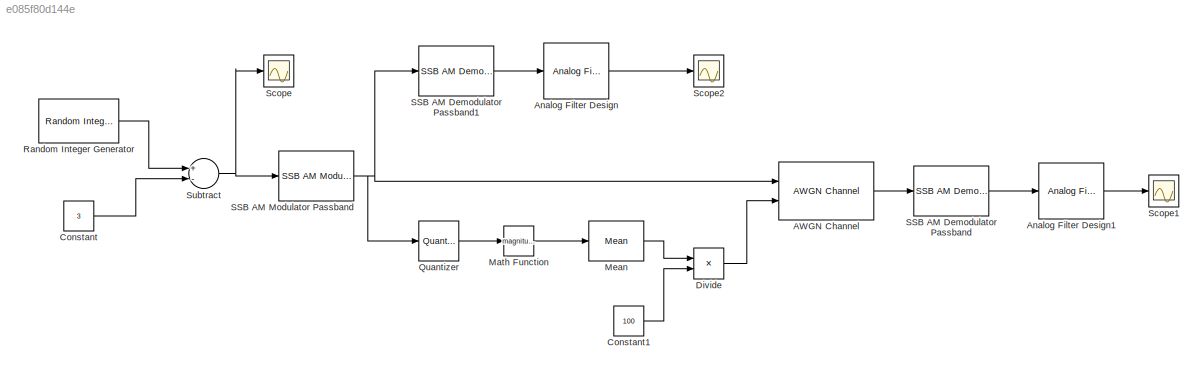
MODEL slx_e085f80d144e
KIND model
BLOCK [Reference] AWGN Channel  REF=commchan3/AWGN
Channel
  EbNodB = 10
  EsNodB = 10
  InputProcessing = Columns as channels (frame based)
  Ports = [2, 1]
  Ps = 1
  SNRdB = 10
  SourceBlock = commchan3/AWGN\nChannel
  SourceType = AWGN Channel
  Tsym = 1
  UserDataPersistent = on
  bitsPerSym = 1
  noiseMode = Variance from port
  seed = 67
  variance = 1
BLOCK [Reference] Analog Filter Design  REF=dsparch4/Analog
Filter Design
  N = 8
  Ports = [1, 1]
  Rp = 2
  Rs = 40
  SourceBlock = dsparch4/Analog\nFilter Design
  SourceType = Analog Filter Design
  Whi = 80
  Wlo = 30
  filttype = Lowpass
  method = Butterworth
BLOCK [Reference] Analog Filter Design1  REF=dsparch4/Analog
Filter Design
  N = 8
  Ports = [1, 1]
  Rp = 2
  Rs = 40
  SourceBlock = dsparch4/Analog\nFilter Design
  SourceType = Analog Filter Design
  Whi = 80
  Wlo = 30
  filttype = Lowpass
  method = Butterworth
BLOCK [Constant] Constant
  Value = 3
BLOCK [Constant] Constant1
  Value = 100
BLOCK [Product] Divide
  InputSameDT = off
  Inputs = */
  OutDataTypeStr = Inherit: Inherit via internal rule
  Ports = [2, 1]
  RndMeth = Floor
  SaturateOnIntegerOverflow = off
BLOCK [Math] Math Function
  Operator = magnitude^2
  Ports = [1, 1]
BLOCK [Reference] Mean  REF=dspstat3/Mean
  InputProcessing = Columns as channels (frame based)
  LockScale = off
  Ports = [1, 1]
  SourceBlock = dspstat3/Mean
  SourceType = Mean
  UserDataPersistent = on
  accumDataTypeStr = Inherit: Same as input
  accumFracLength = 30
  accumLastDataTypeStr = Inherit: Same as input
  accumMode = Same as input
  accumWordLength = 32
  additionalParams = off
  allowOverrides = on
  dimension = 1
  directionMode = Each column
  outputDataTypeStr = Inherit: Same as accumulator
  outputFracLength = 30
  outputLastDataTypeStr = Inherit: Same as accumulator
  outputMax = []
  outputMin = []
  outputMode = Same as accumulator
  outputWordLength = 32
  overflowMode = off
  reset_popup = None
  roiEnable = off
  roiFlag = off
  roiOutput = Individual statistics for each ROI
  roiPortion = Entire ROI
  roiType = Rectangles
  roundingMode = Floor
  run = on
  treatSBRowAsCol = on
BLOCK [Quantizer] Quantizer
  LinearizeAsGain = off
  QuantizationInterval = 0.001
  SampleTime = 0.001
BLOCK [Reference] Random Integer Generator  REF=commrandsrc2/Random Integer
Generator
  Ports = [0, 1]
  SourceBlock = commrandsrc2/Random Integer\nGenerator
  SourceType = Random Integer Generator
  Ts = 1/2
  frameBased = off
  mul = 7
  orient = off
  outDataType = double
  sampPerFrame = 1
  seed = 37
BLOCK [Reference] SSB AM Demodulator Passband  REF=commanapbnd3/SSB AM
Demodulator
Passband
  Fc = 300
  Ph = 0
  Ports = [1, 1]
  Rp = 0.1
  Rs = 50
  SourceBlock = commanapbnd3/SSB AM\nDemodulator\nPassband
  SourceType = SSB AM Demodulator Passband
  cf = 300
  method = Butterworth
  n = 4
BLOCK [Reference] SSB AM Demodulator Passband1  REF=commanapbnd3/SSB AM
Demodulator
Passband
  Fc = 300
  Ph = 0
  Ports = [1, 1]
  Rp = 0.1
  Rs = 50
  SourceBlock = commanapbnd3/SSB AM\nDemodulator\nPassband
  SourceType = SSB AM Demodulator Passband
  cf = 300
  method = Butterworth
  n = 4
BLOCK [Reference] SSB AM Modulator Passband  REF=commanapbnd3/SSB AM
Modulator
Passband
  Fc = 300
  Ho = 100
  Ph = 0
  Ports = [1, 1]
  Sd = Upper
  SourceBlock = commanapbnd3/SSB AM\nModulator\nPassband
  SourceType = SSB AM Modulator Passband
BLOCK [Scope] Scope
  DataFormat = StructureWithTime
  Floating = off
  NumInputPorts = 1
  Ports = [1]
  SampleTime = 0
  ShowLegends = off
BLOCK [Scope] Scope1
  DataFormat = StructureWithTime
  Floating = off
  NumInputPorts = 1
  Ports = [1]
  SampleTime = 0
  SaveName = ScopeData1
  ShowLegends = off
BLOCK [Scope] Scope2
  DataFormat = StructureWithTime
  Floating = off
  NumInputPorts = 1
  Ports = [1]
  SampleTime = 0
  SaveName = ScopeData2
  ShowLegends = off
BLOCK [Sum] Subtract
  InputSameDT = off
  Inputs = +-
  OutDataTypeStr = Inherit: Inherit via internal rule
  Ports = [2, 1]
  SaturateOnIntegerOverflow = off
LINE AWGN Channel:1 -> SSB AM Demodulator Passband:1
LINE Analog Filter Design1:1 -> Scope1:1
LINE Analog Filter Design:1 -> Scope2:1
LINE Constant1:1 -> Divide:2
LINE Constant:1 -> Subtract:2
LINE Divide:1 -> AWGN Channel:2
LINE Math Function:1 -> Mean:1
LINE Mean:1 -> Divide:1
LINE Quantizer:1 -> Math Function:1
LINE Random Integer Generator:1 -> Subtract:1
LINE SSB AM Demodulator Passband1:1 -> Analog Filter Design:1
LINE SSB AM Demodulator Passband:1 -> Analog Filter Design1:1
NET SSB AM Modulator Passband:1 -> AWGN Channel:1, Quantizer:1, SSB AM Demodulator Passband1:1
NET Subtract:1 -> SSB AM Modulator Passband:1, Scope:1
note: NET lines group one-source signal fan-out (src -> all destinations, sorted); 1:1 wires keep LINE
